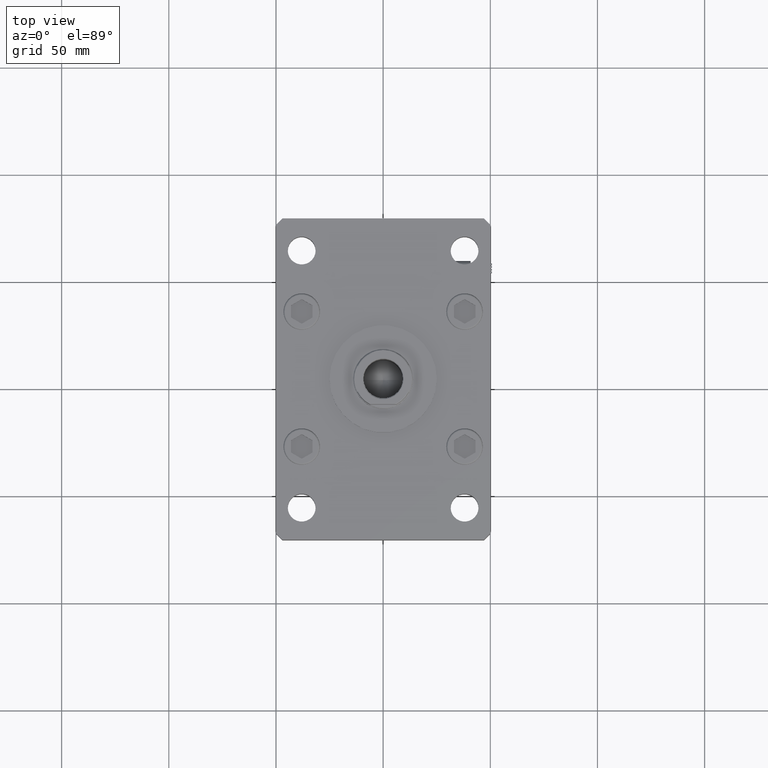
[diagram: clean part render]
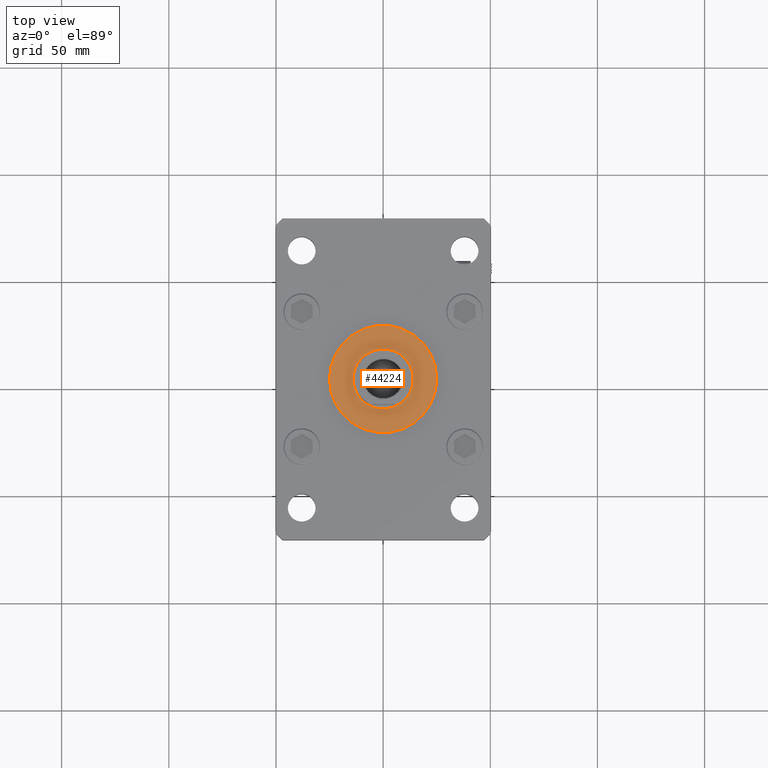
[diagram: same view with one face highlighted and labeled with its STEP entity id]
A machine part, top view. The second image highlights one B-rep face of the part: STEP entity #44224.
In plain terms, the highlighted planar face has unit normal (0, 0, 1).
Its self-contained STEP definition (entity closure, byte-faithful):
#3473 = ORIENTED_EDGE ( 'NONE', *, *, #44401, .F. ) ;
#3654 = VERTEX_POINT ( 'NONE', #19382 ) ;
#3678 = DIRECTION ( 'NONE',  ( 1.000000000000000000, 0.000000000000000000, 0.000000000000000000 ) ) ;
#6110 = AXIS2_PLACEMENT_3D ( 'NONE', #8867, #14037, #12923 ) ;
#8092 = VERTEX_POINT ( 'NONE', #20156 ) ;
#8449 = EDGE_CURVE ( 'NONE', #33297, #3654, #55085, .T. ) ;
#8803 = CARTESIAN_POINT ( 'NONE',  ( -25.00000000000000000, 0.000000000000000000, 22.00000000000000000 ) ) ;
#8858 = AXIS2_PLACEMENT_3D ( 'NONE', #38230, #51753, #38799 ) ;
#8867 = CARTESIAN_POINT ( 'NONE',  ( 0.000000000000000000, 0.000000000000000000, 22.00000000000000000 ) ) ;
#9670 = EDGE_CURVE ( 'NONE', #44765, #8092, #54210, .T. ) ;
#9881 = ORIENTED_EDGE ( 'NONE', *, *, #8449, .F. ) ;
#11669 = AXIS2_PLACEMENT_3D ( 'NONE', #25952, #13014, #29976 ) ;
#12923 = DIRECTION ( 'NONE',  ( 1.000000000000000000, 0.000000000000000000, 0.000000000000000000 ) ) ;
#13014 = DIRECTION ( 'NONE',  ( 0.000000000000000000, 0.000000000000000000, 1.000000000000000000 ) ) ;
#13765 = EDGE_LOOP ( 'NONE', ( #18167, #46930 ) ) ;
#14037 = DIRECTION ( 'NONE',  ( 0.000000000000000000, 0.000000000000000000, 1.000000000000000000 ) ) ;
#14849 = EDGE_LOOP ( 'NONE', ( #9881, #3473 ) ) ;
#16116 = EDGE_CURVE ( 'NONE', #8092, #44765, #36442, .T. ) ;
#16677 = FACE_OUTER_BOUND ( 'NONE', #13765, .T. ) ;
#18167 = ORIENTED_EDGE ( 'NONE', *, *, #9670, .T. ) ;
#19382 = CARTESIAN_POINT ( 'NONE',  ( -14.00000000000000000, 1.714505518806294638E-15, 22.00000000000000000 ) ) ;
#19760 = CARTESIAN_POINT ( 'NONE',  ( 14.00000000000000000, 0.000000000000000000, 22.00000000000000000 ) ) ;
#20156 = CARTESIAN_POINT ( 'NONE',  ( 25.00000000000000000, 3.061616997868383043E-15, 22.00000000000000000 ) ) ;
#21723 = CIRCLE ( 'NONE', #6110, 14.00000000000000000 ) ;
#25620 = CARTESIAN_POINT ( 'NONE',  ( 0.000000000000000000, 0.000000000000000000, 22.00000000000000000 ) ) ;
#25952 = CARTESIAN_POINT ( 'NONE',  ( 0.000000000000000000, 0.000000000000000000, 22.00000000000000000 ) ) ;
#26451 = DIRECTION ( 'NONE',  ( 1.000000000000000000, 0.000000000000000000, 0.000000000000000000 ) ) ;
#29926 = DIRECTION ( 'NONE',  ( 0.000000000000000000, 0.000000000000000000, 1.000000000000000000 ) ) ;
#29976 = DIRECTION ( 'NONE',  ( 1.000000000000000000, 0.000000000000000000, 0.000000000000000000 ) ) ;
#33297 = VERTEX_POINT ( 'NONE', #19760 ) ;
#36442 = CIRCLE ( 'NONE', #11669, 25.00000000000000000 ) ;
#36759 = AXIS2_PLACEMENT_3D ( 'NONE', #25620, #29926, #26451 ) ;
#38230 = CARTESIAN_POINT ( 'NONE',  ( 0.000000000000000000, 0.000000000000000000, 22.00000000000000000 ) ) ;
#38799 = DIRECTION ( 'NONE',  ( 1.000000000000000000, 0.000000000000000000, -0.000000000000000000 ) ) ;
#44224 = ADVANCED_FACE ( 'NONE', ( #47157, #16677 ), #46879, .T. ) ;
#44401 = EDGE_CURVE ( 'NONE', #3654, #33297, #21723, .T. ) ;
#44765 = VERTEX_POINT ( 'NONE', #8803 ) ;
#46879 = PLANE ( 'NONE',  #8858 ) ;
#46930 = ORIENTED_EDGE ( 'NONE', *, *, #16116, .T. ) ;
#47157 = FACE_BOUND ( 'NONE', #14849, .T. ) ;
#47962 = DIRECTION ( 'NONE',  ( 0.000000000000000000, 0.000000000000000000, 1.000000000000000000 ) ) ;
#49582 = AXIS2_PLACEMENT_3D ( 'NONE', #56035, #47962, #3678 ) ;
#51753 = DIRECTION ( 'NONE',  ( 0.000000000000000000, 0.000000000000000000, 1.000000000000000000 ) ) ;
#54210 = CIRCLE ( 'NONE', #36759, 25.00000000000000000 ) ;
#55085 = CIRCLE ( 'NONE', #49582, 14.00000000000000000 ) ;
#56035 = CARTESIAN_POINT ( 'NONE',  ( 0.000000000000000000, 0.000000000000000000, 22.00000000000000000 ) ) ;